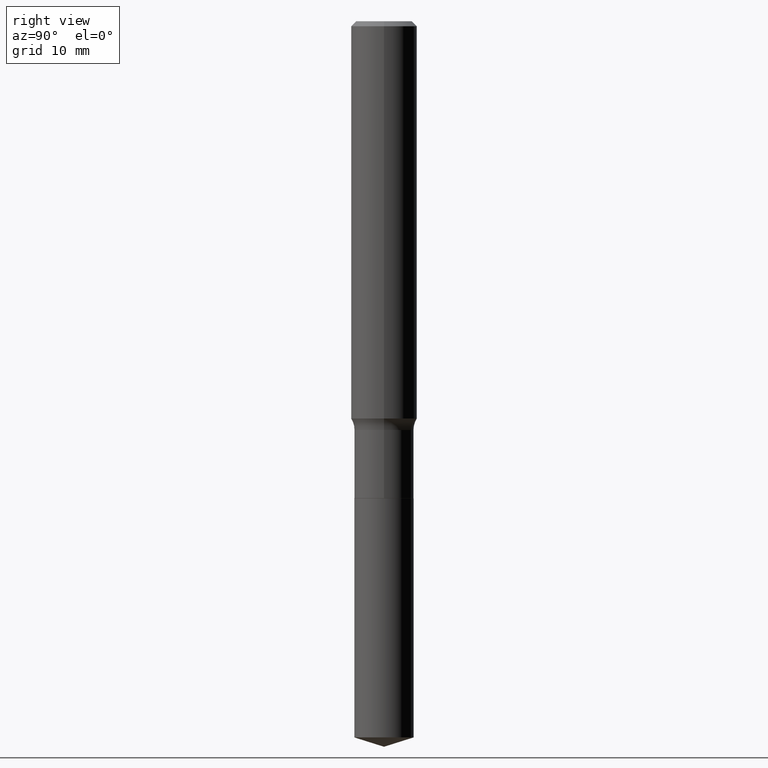
[diagram: clean part render]
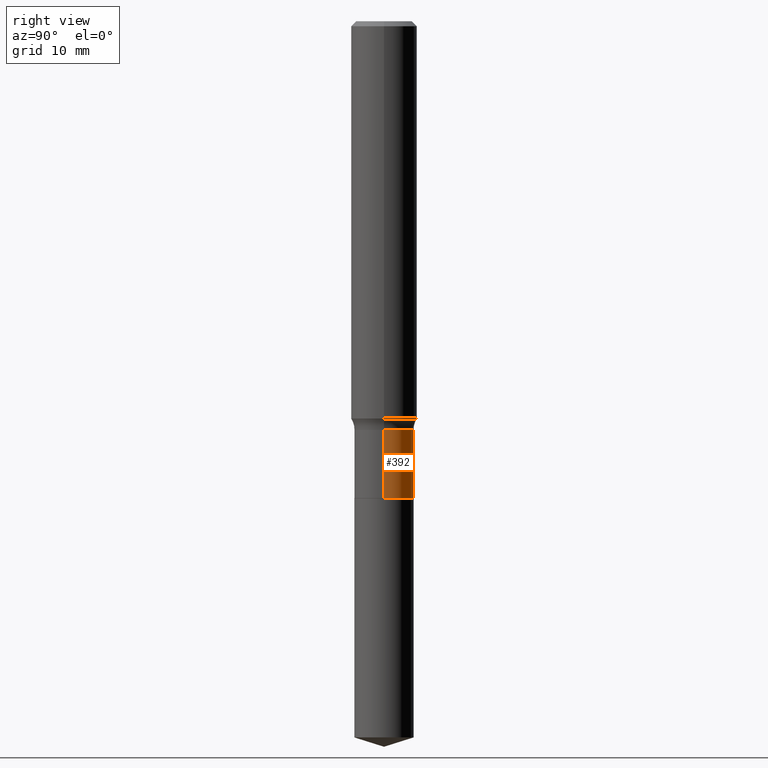
[diagram: same view with one face highlighted and labeled with its STEP entity id]
A machine part, right view. The second image highlights one B-rep face of the part: STEP entity #392.
In plain terms, the highlighted cylindrical surface (edge-blend (fillet) strip) has radius 2.7 mm, axis along (-0, 0, 1).
Its self-contained STEP definition (entity closure, byte-faithful):
#6 = ORIENTED_EDGE ( 'NONE', *, *, #27, .T. ) ;
#7 = AXIS2_PLACEMENT_3D ( 'NONE', #458, #115, #235 ) ;
#17 = DIRECTION ( 'NONE',  ( 1.000000000000000000, -6.982962677686269077E-15, 0.000000000000000000 ) ) ;
#21 = ORIENTED_EDGE ( 'NONE', *, *, #211, .F. ) ;
#27 = EDGE_CURVE ( 'NONE', #479, #310, #397, .T. ) ;
#38 = FACE_OUTER_BOUND ( 'NONE', #316, .T. ) ;
#71 = DIRECTION ( 'NONE',  ( -2.445468806185136597E-29, 3.491481338843145583E-15, 1.000000000000000000 ) ) ;
#80 = DIRECTION ( 'NONE',  ( -2.445468806185136877E-29, 3.491481338843145188E-15, 1.000000000000000000 ) ) ;
#81 = ORIENTED_EDGE ( 'NONE', *, *, #332, .F. ) ;
#115 = DIRECTION ( 'NONE',  ( -2.445468806185136597E-29, 3.491481338843145583E-15, 1.000000000000000000 ) ) ;
#118 = LINE ( 'NONE', #202, #351 ) ;
#125 = VERTEX_POINT ( 'NONE', #293 ) ;
#136 = CARTESIAN_POINT ( 'NONE',  ( -0.1063000000000000056, -4.782531623426126781E-15, -1.708099999999999952 ) ) ;
#142 = CIRCLE ( 'NONE', #429, 0.1062999999999999640 ) ;
#166 = AXIS2_PLACEMENT_3D ( 'NONE', #431, #404, #17 ) ;
#167 = VERTEX_POINT ( 'NONE', #374 ) ;
#175 = CARTESIAN_POINT ( 'NONE',  ( -0.1062999999999999917, 7.553069281129864387E-16, -5.228828000940964357E-30 ) ) ;
#195 = CYLINDRICAL_SURFACE ( 'NONE', #7, 0.1062999999999999917 ) ;
#202 = CARTESIAN_POINT ( 'NONE',  ( 0.1062999999999999917, -7.422889326380501387E-16, 5.183375912671078649E-30 ) ) ;
#211 = EDGE_CURVE ( 'NONE', #167, #310, #142, .T. ) ;
#235 = DIRECTION ( 'NONE',  ( 1.000000000000000000, -6.982962677686267499E-15, 4.876176775795935232E-29 ) ) ;
#258 = DIRECTION ( 'NONE',  ( 1.000000000000000000, -6.982962677686271444E-15, 0.000000000000000000 ) ) ;
#262 = CIRCLE ( 'NONE', #166, 0.1063000000000000056 ) ;
#293 = CARTESIAN_POINT ( 'NONE',  ( 0.1063000000000000056, -6.706088207516027289E-15, -1.708099999999999952 ) ) ;
#310 = VERTEX_POINT ( 'NONE', #465 ) ;
#316 = EDGE_LOOP ( 'NONE', ( #428, #6, #21, #81 ) ) ;
#332 = EDGE_CURVE ( 'NONE', #125, #167, #118, .T. ) ;
#351 = VECTOR ( 'NONE', #80, 39.37007874015748143 ) ;
#374 = CARTESIAN_POINT ( 'NONE',  ( 0.1062999999999999640, -5.854166760838299626E-15, -1.464099999999999735 ) ) ;
#392 = ADVANCED_FACE ( 'NONE', ( #38 ), #195, .T. ) ;
#397 = LINE ( 'NONE', #175, #438 ) ;
#404 = DIRECTION ( 'NONE',  ( -2.445468806185136597E-29, 3.491481338843145583E-15, 1.000000000000000000 ) ) ;
#428 = ORIENTED_EDGE ( 'NONE', *, *, #448, .T. ) ;
#429 = AXIS2_PLACEMENT_3D ( 'NONE', #451, #71, #258 ) ;
#431 = CARTESIAN_POINT ( 'NONE',  ( 4.177105267844832123E-29, -5.963799274877977150E-15, -1.708099999999999952 ) ) ;
#438 = VECTOR ( 'NONE', #470, 39.37007874015748143 ) ;
#448 = EDGE_CURVE ( 'NONE', #125, #479, #262, .T. ) ;
#451 = CARTESIAN_POINT ( 'NONE',  ( 3.580410879135657668E-29, -5.111877828200249487E-15, -1.464099999999999735 ) ) ;
#458 = CARTESIAN_POINT ( 'NONE',  ( 0.000000000000000000, 0.000000000000000000, 0.000000000000000000 ) ) ;
#465 = CARTESIAN_POINT ( 'NONE',  ( -0.1062999999999999640, -4.782531623426126781E-15, -1.464099999999999735 ) ) ;
#470 = DIRECTION ( 'NONE',  ( -2.445468806185136877E-29, 3.491481338843145188E-15, 1.000000000000000000 ) ) ;
#479 = VERTEX_POINT ( 'NONE', #136 ) ;